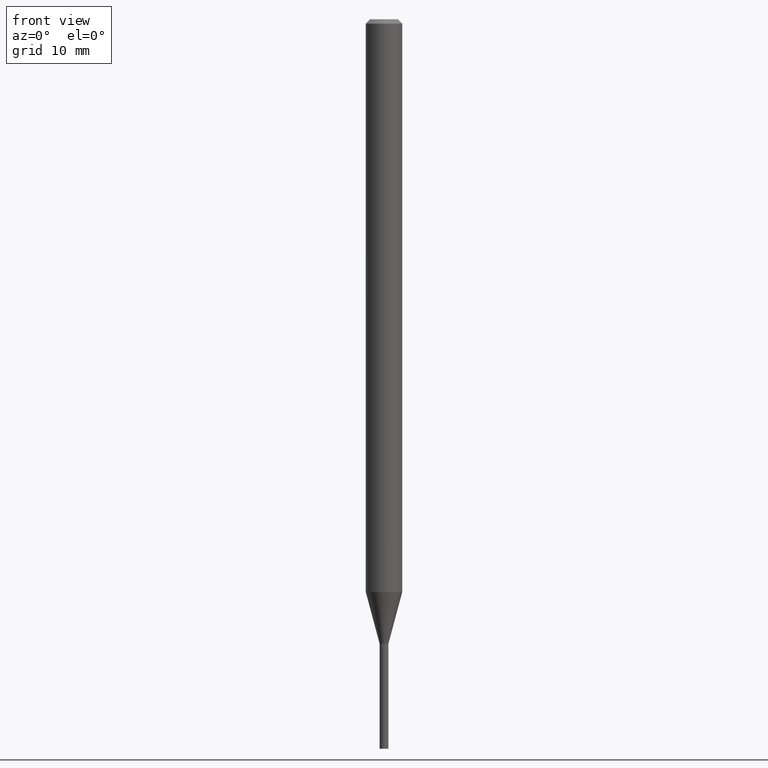
[diagram: clean part render]
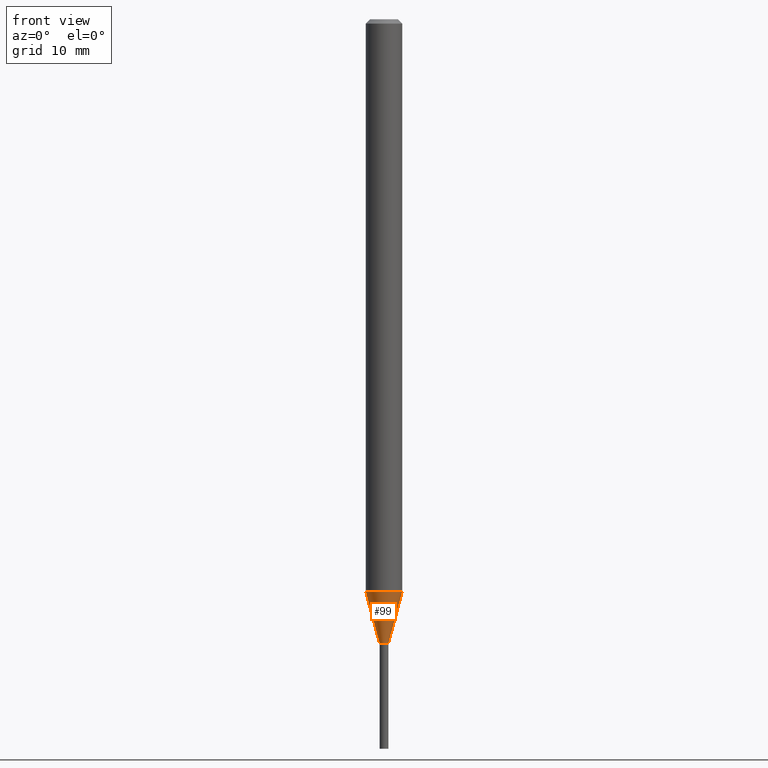
[diagram: same view with one face highlighted and labeled with its STEP entity id]
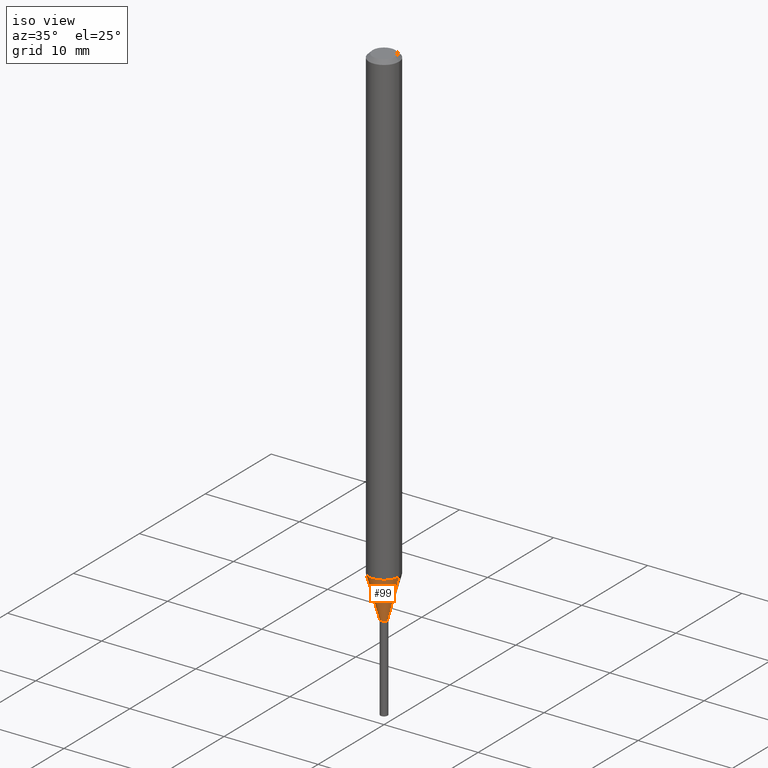
[diagram: same view with one face highlighted and labeled with its STEP entity id]
A machine part, front view. The second image highlights one B-rep face of the part: STEP entity #99.
A second angle (iso view) of the same face is appended — the face is thin or edge-on in the first view.
In plain terms, the highlighted conical surface has half-angle 15 deg.
Its self-contained STEP definition (entity closure, byte-faithful):
#53 = LINE ( 'NONE', #240, #201 ) ;
#56 = VERTEX_POINT ( 'NONE', #374 ) ;
#58 = LINE ( 'NONE', #94, #191 ) ;
#94 = CARTESIAN_POINT ( 'NONE',  ( -0.01499999999999964730, -7.365188654760319130E-15, -2.140000000000000124 ) ) ;
#99 = ADVANCED_FACE ( 'NONE', ( #450 ), #371, .T. ) ;
#117 = CARTESIAN_POINT ( 'NONE',  ( 5.233303245236192586E-29, -7.471770065124331886E-15, -2.140000000000000124 ) ) ;
#118 = CIRCLE ( 'NONE', #393, 0.06250000000000000000 ) ;
#128 = AXIS2_PLACEMENT_3D ( 'NONE', #117, #264, #257 ) ;
#136 = CARTESIAN_POINT ( 'NONE',  ( -0.06250000000000000000, -6.408737532137808059E-15, -1.962727586640477417 ) ) ;
#154 = VERTEX_POINT ( 'NONE', #136 ) ;
#172 = DIRECTION ( 'NONE',  ( -0.2588190451025212391, 5.211531920934549464E-15, 0.9659258262890679791 ) ) ;
#185 = EDGE_LOOP ( 'NONE', ( #186, #423, #350, #386 ) ) ;
#186 = ORIENTED_EDGE ( 'NONE', *, *, #362, .F. ) ;
#187 = DIRECTION ( 'NONE',  ( 1.000000000000000000, -6.982962677686238312E-15, 0.000000000000000000 ) ) ;
#191 = VECTOR ( 'NONE', #172, 39.37007874015748854 ) ;
#201 = VECTOR ( 'NONE', #273, 39.37007874015748854 ) ;
#202 = VERTEX_POINT ( 'NONE', #466 ) ;
#209 = CARTESIAN_POINT ( 'NONE',  ( 0.06250000000000000000, -7.289261909343262345E-15, -1.962727586640477417 ) ) ;
#240 = CARTESIAN_POINT ( 'NONE',  ( 0.01499999999999964730, -7.576514505289623678E-15, -2.140000000000000124 ) ) ;
#251 = DIRECTION ( 'NONE',  ( -2.445468806185136597E-29, 3.491481338843145583E-15, 1.000000000000000000 ) ) ;
#257 = DIRECTION ( 'NONE',  ( 1.000000000000000000, -6.982962677686238312E-15, 0.000000000000000000 ) ) ;
#264 = DIRECTION ( 'NONE',  ( -2.445468806185136597E-29, 3.491481338843145583E-15, 1.000000000000000000 ) ) ;
#273 = DIRECTION ( 'NONE',  ( 0.2588190451025212391, 1.565188264969622362E-15, 0.9659258262890679791 ) ) ;
#282 = DIRECTION ( 'NONE',  ( -2.445468806185136597E-29, 3.491481338843145583E-15, 1.000000000000000000 ) ) ;
#288 = CIRCLE ( 'NONE', #315, 0.01499999999999964730 ) ;
#315 = AXIS2_PLACEMENT_3D ( 'NONE', #359, #282, #187 ) ;
#349 = EDGE_CURVE ( 'NONE', #56, #461, #53, .T. ) ;
#350 = ORIENTED_EDGE ( 'NONE', *, *, #349, .T. ) ;
#357 = CARTESIAN_POINT ( 'NONE',  ( 4.799789088168322690E-29, -6.852826741987870675E-15, -1.962727586640477417 ) ) ;
#359 = CARTESIAN_POINT ( 'NONE',  ( 5.233303245236192586E-29, -7.471770065124331886E-15, -2.140000000000000124 ) ) ;
#362 = EDGE_CURVE ( 'NONE', #202, #154, #58, .T. ) ;
#371 = CONICAL_SURFACE ( 'NONE', #128, 0.01499999999999964730, 0.2617993877991499629 ) ;
#374 = CARTESIAN_POINT ( 'NONE',  ( 0.01499999999999964730, -7.576514505289623678E-15, -2.140000000000000124 ) ) ;
#386 = ORIENTED_EDGE ( 'NONE', *, *, #398, .F. ) ;
#393 = AXIS2_PLACEMENT_3D ( 'NONE', #357, #251, #439 ) ;
#398 = EDGE_CURVE ( 'NONE', #154, #461, #118, .T. ) ;
#423 = ORIENTED_EDGE ( 'NONE', *, *, #434, .T. ) ;
#434 = EDGE_CURVE ( 'NONE', #202, #56, #288, .T. ) ;
#439 = DIRECTION ( 'NONE',  ( 1.000000000000000000, -6.982962677686262766E-15, 0.000000000000000000 ) ) ;
#450 = FACE_OUTER_BOUND ( 'NONE', #185, .T. ) ;
#461 = VERTEX_POINT ( 'NONE', #209 ) ;
#466 = CARTESIAN_POINT ( 'NONE',  ( -0.01499999999999964730, -6.886963093449063595E-15, -2.140000000000000124 ) ) ;